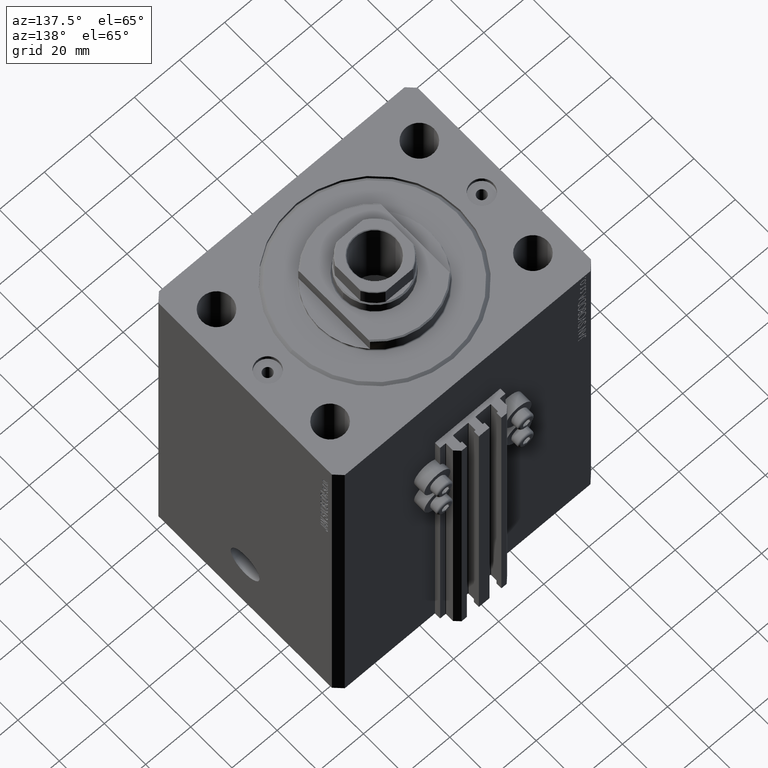
[diagram: clean part render]
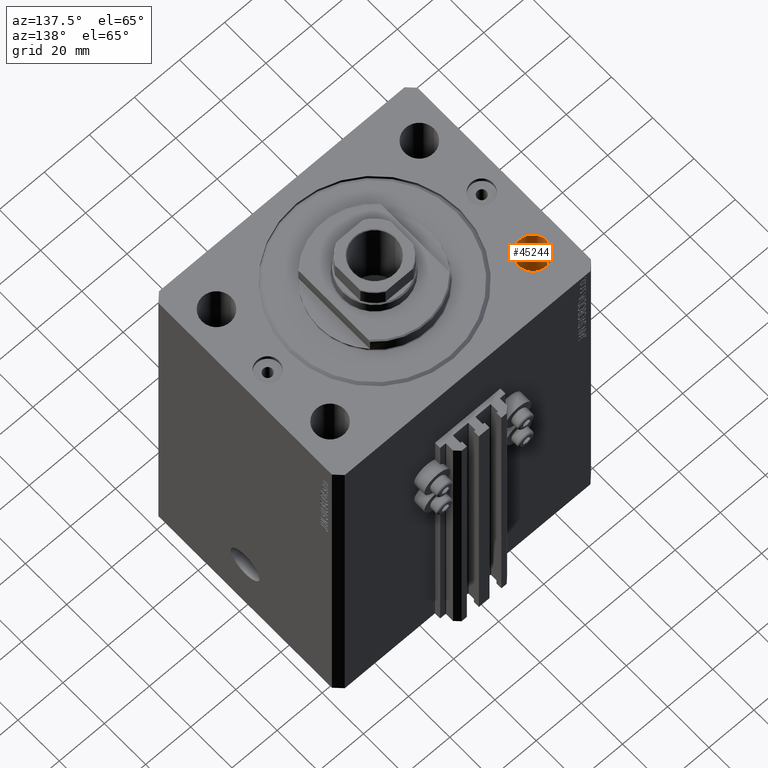
[diagram: same view with one face highlighted and labeled with its STEP entity id]
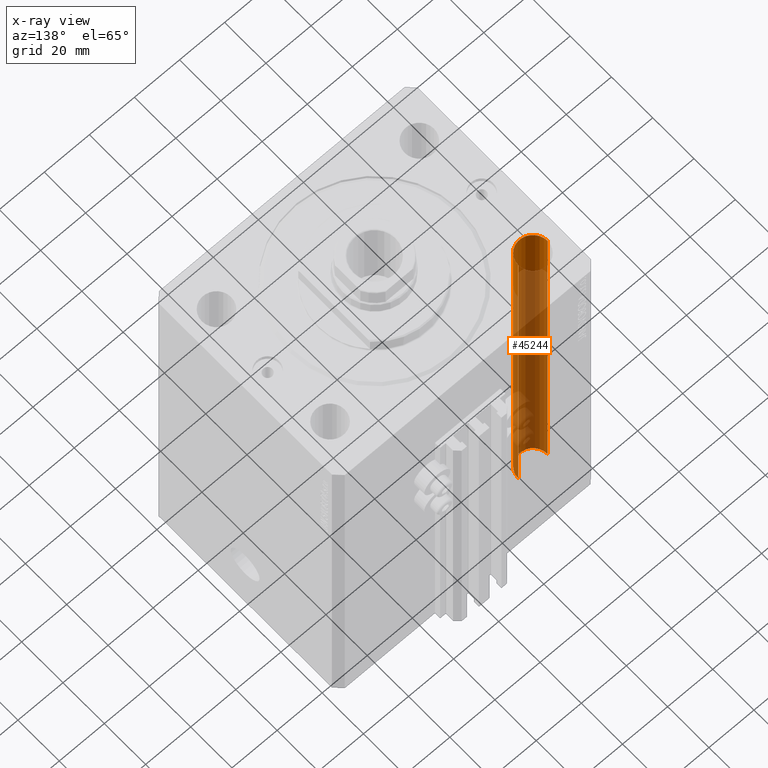
[diagram: x-ray of the same camera — body ghosted, the highlighted face saturated]
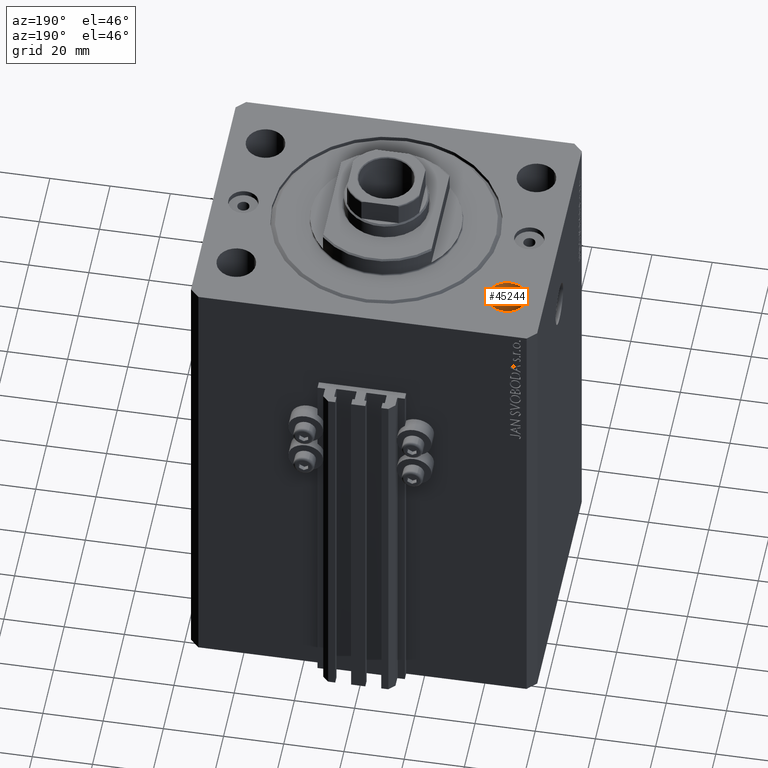
[diagram: same view with one face highlighted and labeled with its STEP entity id]
A machine part, auxiliary view. The second image highlights one B-rep face of the part: STEP entity #45244.
The next image is the same camera in x-ray: the body ghosted, the highlighted face saturated — about 83% of this face is hidden behind the body in this view.
A second angle (auxiliary view) of the same face is appended — the face is thin or edge-on in the first view.
In plain terms, the highlighted cylindrical surface (edge-blend (fillet) strip) has radius 6.5 mm, axis along (0, 0, 1).
Its self-contained STEP definition (entity closure, byte-faithful):
#275 = CIRCLE ( 'NONE', #10191, 6.499999999999999112 ) ;
#2125 = ORIENTED_EDGE ( 'NONE', *, *, #21981, .T. ) ;
#2520 = DIRECTION ( 'NONE',  ( 1.000000000000000000, 0.000000000000000000, 0.000000000000000000 ) ) ;
#2732 = VERTEX_POINT ( 'NONE', #6991 ) ;
#2750 = CARTESIAN_POINT ( 'NONE',  ( -45.00000000000000000, 27.49999999999999645, -183.3847763108502420 ) ) ;
#3430 = EDGE_CURVE ( 'NONE', #2732, #27845, #32524, .T. ) ;
#3868 = CARTESIAN_POINT ( 'NONE',  ( -51.50000000000000000, 27.49999999999999645, 0.000000000000000000 ) ) ;
#4401 = EDGE_CURVE ( 'NONE', #12030, #22429, #41956, .T. ) ;
#6991 = CARTESIAN_POINT ( 'NONE',  ( -38.50000000000000000, 27.49999999999999645, -165.0000000000000000 ) ) ;
#7903 = DIRECTION ( 'NONE',  ( -0.000000000000000000, -0.000000000000000000, -1.000000000000000000 ) ) ;
#8798 = CIRCLE ( 'NONE', #35493, 6.499999999999999112 ) ;
#9195 = CARTESIAN_POINT ( 'NONE',  ( -45.00000000000000000, 27.49999999999999645, 0.000000000000000000 ) ) ;
#9740 = ORIENTED_EDGE ( 'NONE', *, *, #3430, .F. ) ;
#10191 = AXIS2_PLACEMENT_3D ( 'NONE', #40382, #7903, #18152 ) ;
#10267 = ORIENTED_EDGE ( 'NONE', *, *, #42763, .T. ) ;
#12030 = VERTEX_POINT ( 'NONE', #47127 ) ;
#12162 = VECTOR ( 'NONE', #35649, 1000.000000000000000 ) ;
#13236 = DIRECTION ( 'NONE',  ( 0.000000000000000000, 0.000000000000000000, 1.000000000000000000 ) ) ;
#14173 = CYLINDRICAL_SURFACE ( 'NONE', #15552, 6.499999999999999112 ) ;
#15552 = AXIS2_PLACEMENT_3D ( 'NONE', #2750, #17281, #43323 ) ;
#17281 = DIRECTION ( 'NONE',  ( -0.000000000000000000, -0.000000000000000000, 1.000000000000000000 ) ) ;
#18152 = DIRECTION ( 'NONE',  ( 1.000000000000000000, 0.000000000000000000, 0.000000000000000000 ) ) ;
#18728 = CARTESIAN_POINT ( 'NONE',  ( -38.50000000000000000, 27.49999999999999645, 0.000000000000000000 ) ) ;
#21981 = EDGE_CURVE ( 'NONE', #22429, #27845, #8798, .T. ) ;
#22429 = VERTEX_POINT ( 'NONE', #3868 ) ;
#25343 = EDGE_LOOP ( 'NONE', ( #10267, #25768, #2125, #9740 ) ) ;
#25768 = ORIENTED_EDGE ( 'NONE', *, *, #4401, .T. ) ;
#26882 = CARTESIAN_POINT ( 'NONE',  ( -51.50000000000000000, 27.49999999999999645, -183.3847763108502420 ) ) ;
#27400 = VECTOR ( 'NONE', #44840, 1000.000000000000000 ) ;
#27845 = VERTEX_POINT ( 'NONE', #18728 ) ;
#32524 = LINE ( 'NONE', #42817, #12162 ) ;
#35493 = AXIS2_PLACEMENT_3D ( 'NONE', #9195, #13236, #2520 ) ;
#35649 = DIRECTION ( 'NONE',  ( -0.000000000000000000, -0.000000000000000000, 1.000000000000000000 ) ) ;
#40382 = CARTESIAN_POINT ( 'NONE',  ( -45.00000000000000000, 27.49999999999999645, -165.0000000000000000 ) ) ;
#41956 = LINE ( 'NONE', #26882, #27400 ) ;
#42763 = EDGE_CURVE ( 'NONE', #2732, #12030, #275, .T. ) ;
#42817 = CARTESIAN_POINT ( 'NONE',  ( -38.50000000000000000, 27.49999999999999645, -183.3847763108502420 ) ) ;
#43084 = FACE_OUTER_BOUND ( 'NONE', #25343, .T. ) ;
#43323 = DIRECTION ( 'NONE',  ( 1.000000000000000000, 0.000000000000000000, 0.000000000000000000 ) ) ;
#44840 = DIRECTION ( 'NONE',  ( -0.000000000000000000, -0.000000000000000000, 1.000000000000000000 ) ) ;
#45244 = ADVANCED_FACE ( 'NONE', ( #43084 ), #14173, .F. ) ;
#47127 = CARTESIAN_POINT ( 'NONE',  ( -51.50000000000000000, 27.49999999999999645, -165.0000000000000000 ) ) ;